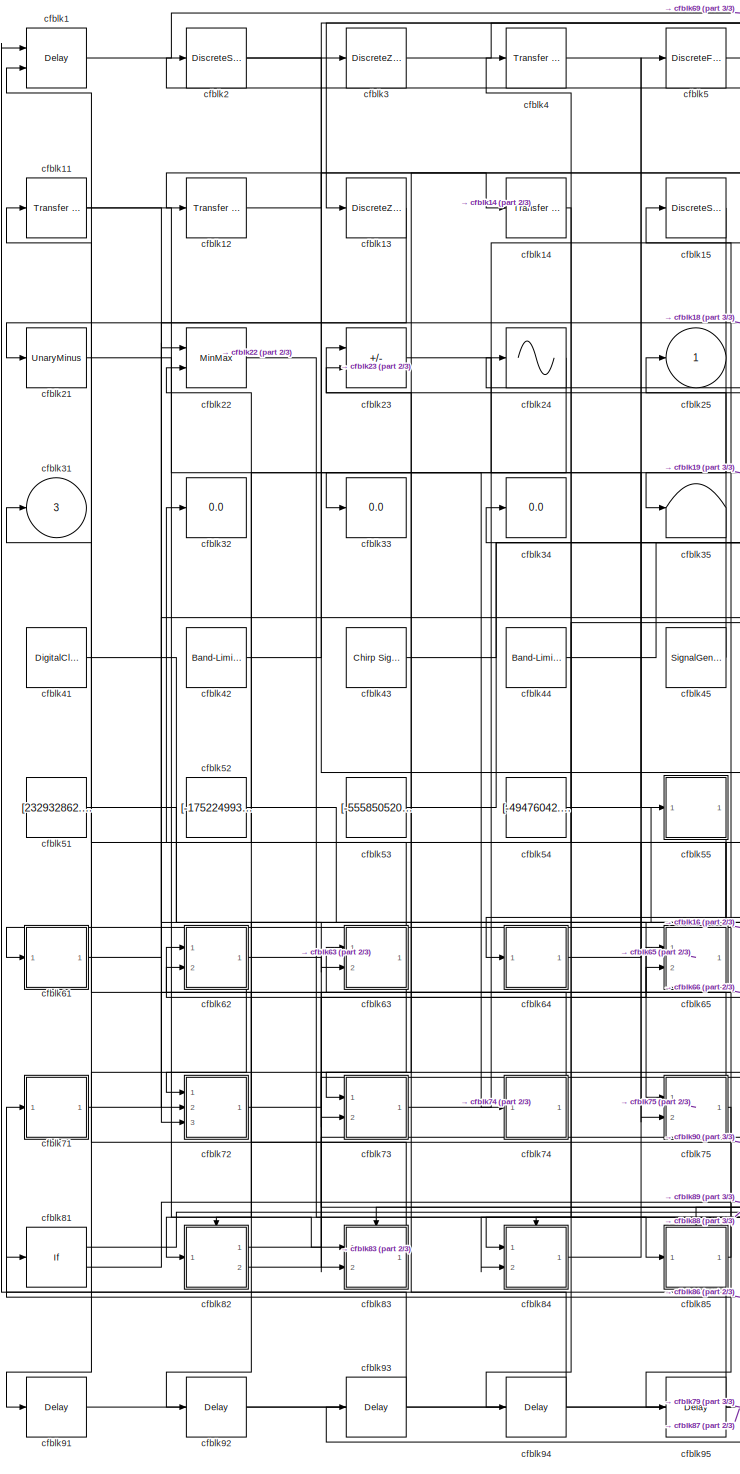
[diagram: root canvas - part 1/3, left side, full height]
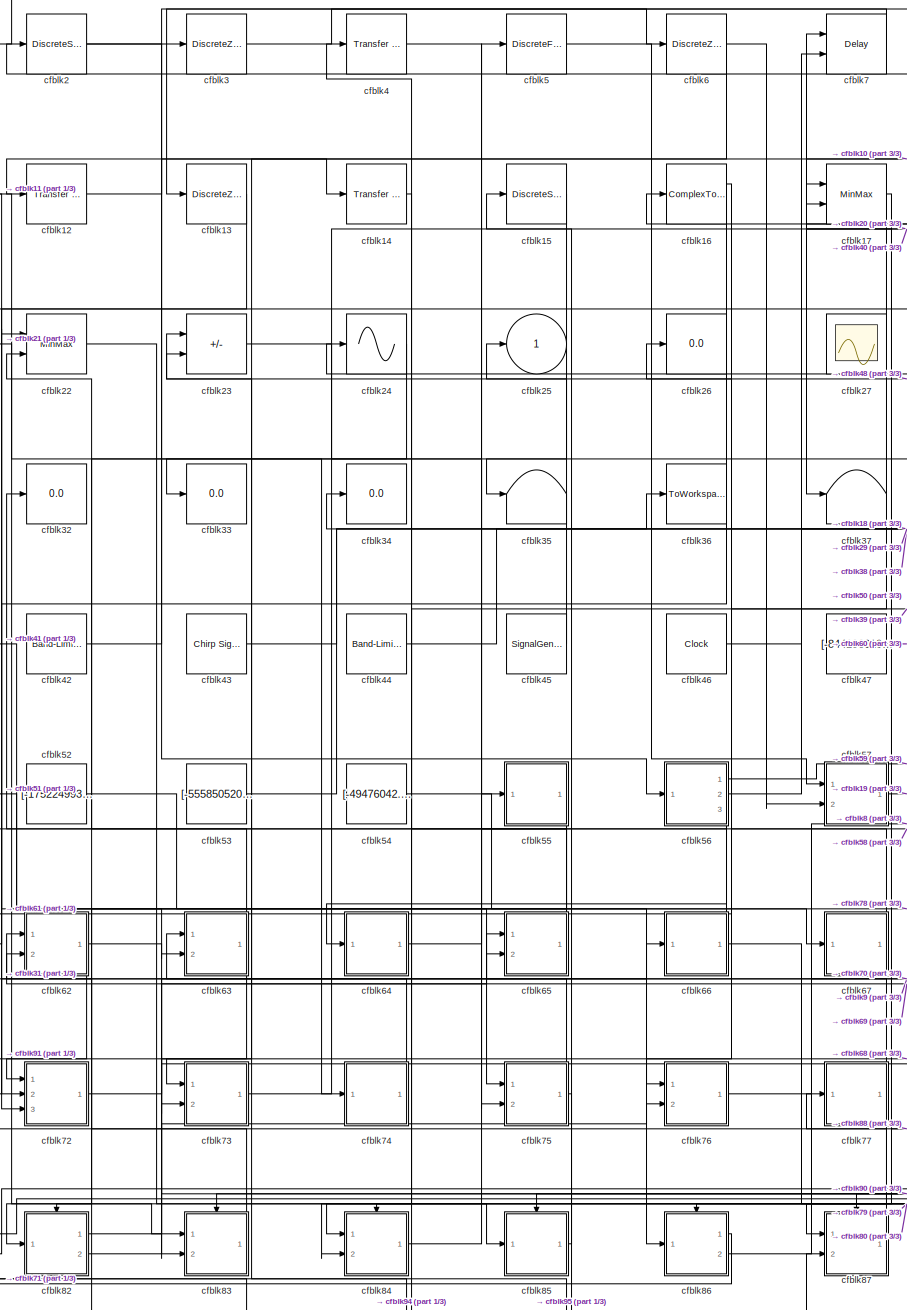
[diagram: root canvas - part 2/3, center side, full height]
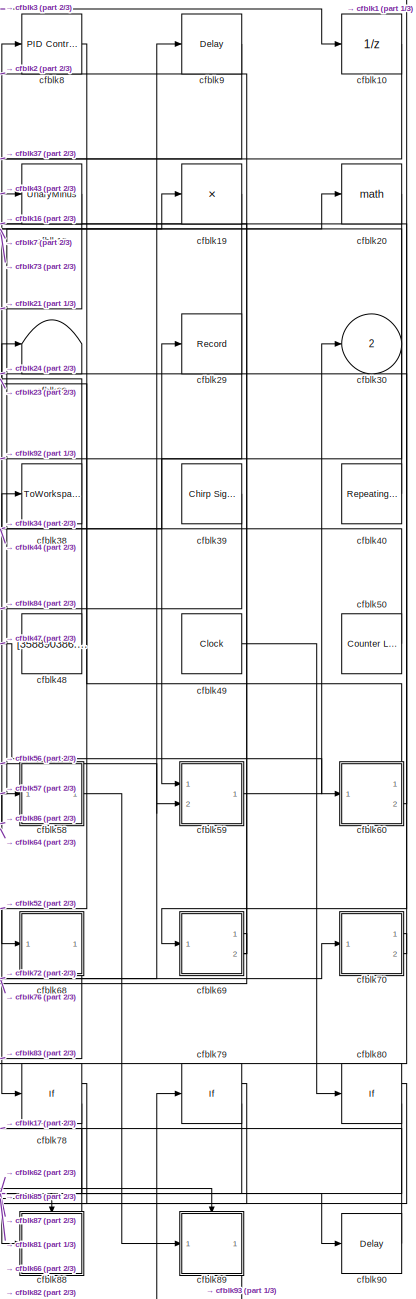
[diagram: root canvas - part 3/3, right side, full height]
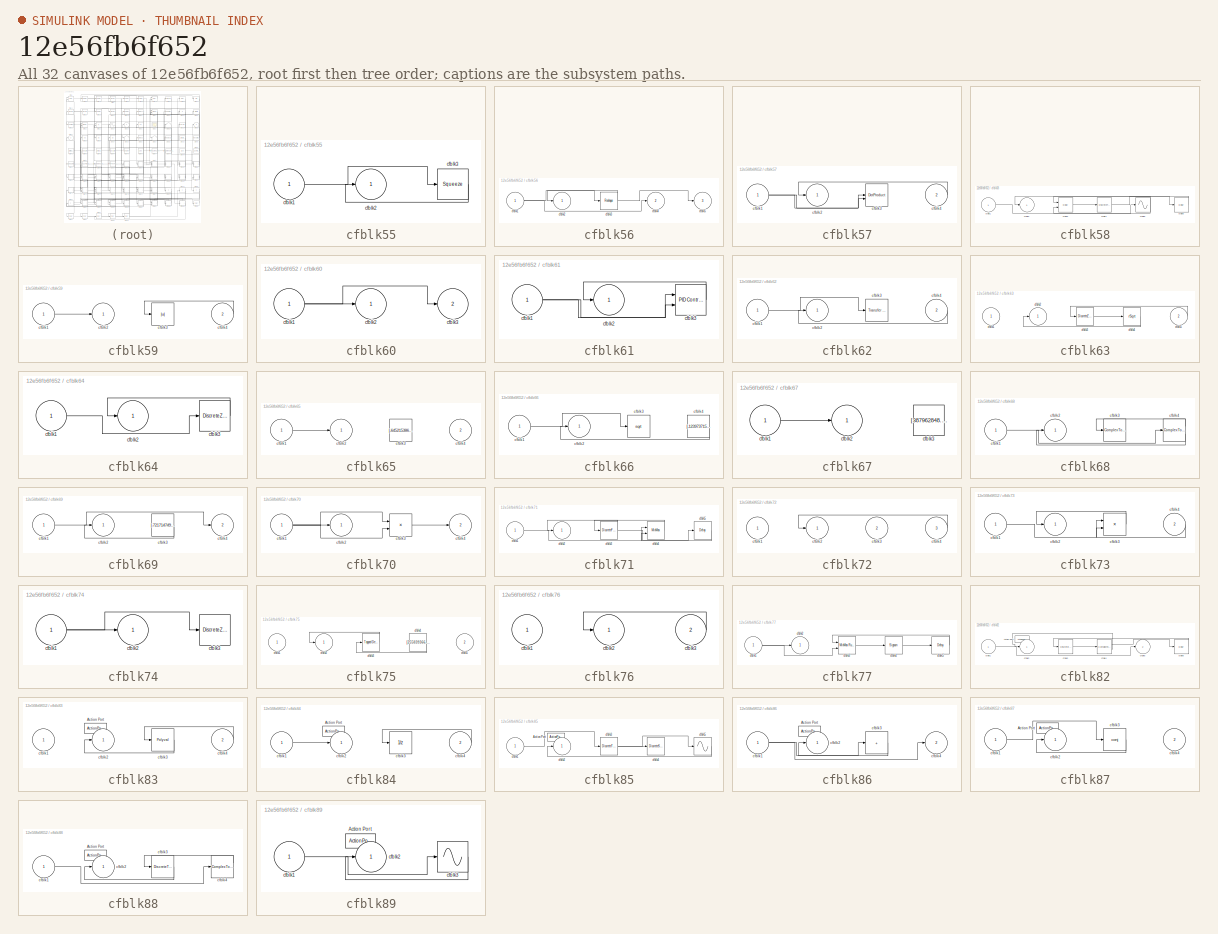
[diagram: thumbnail index - all 32 canvases of the model, root first then tree order]
MODEL slx_12e56fb6f652
KIND model
CONFIG AbsTol = auto
CONFIG EnableMultiTasking = off
CONFIG FixedStep = auto
CONFIG MaxStep = auto
CONFIG MinStep = auto
CONFIG RelTol = 1e-3
CONFIG SampleTimeConstraint = Unconstrained
CONFIG SolverName = VariableStepAuto
CONFIG StartTime = 0.0
CONFIG StopTime = 10.0
BLOCK [Delay] cfblk1
  DelayLengthSource = Input port
  InputPortMap = u0,p1
  Ports = [2, 1]
  SampleTime = 1
BLOCK [UnitDelay] cfblk10
  HasFrameUpgradeWarning = on
BLOCK [Reference] cfblk11  REF=simulink/Discrete/Transfer Fcn
Lead or Lag
  Ports = [1, 1]
  SourceBlock = simulink/Discrete/Transfer Fcn\nLead or Lag
  SourceProductBaseCode = SL
  SourceType = Lead or Lag Compensator
BLOCK [Reference] cfblk12  REF=simulink/Discrete/Transfer Fcn
Lead or Lag
  Ports = [1, 1]
  SourceBlock = simulink/Discrete/Transfer Fcn\nLead or Lag
  SourceProductBaseCode = SL
  SourceType = Lead or Lag Compensator
BLOCK [DiscreteZeroPole] cfblk13
  Gain = 1
  Poles = [0 0.5]
BLOCK [Reference] cfblk14  REF=simulink/Discrete/Transfer Fcn
Real Zero
  Ports = [1, 1]
  SourceBlock = simulink/Discrete/Transfer Fcn\nReal Zero
  SourceProductBaseCode = SL
  SourceType = Transfer Fcn Real Zero
BLOCK [DiscreteStateSpace] cfblk15
BLOCK [ComplexToRealImag] cfblk16
  Ports = [1, 2]
BLOCK [MinMax] cfblk17
  Inputs = 2
  Ports = [2, 1]
BLOCK [UnaryMinus] cfblk18
BLOCK [Product] cfblk19
  Inputs = *
  Ports = [1, 1]
BLOCK [DiscreteStateSpace] cfblk2
BLOCK [Math] cfblk20
  Ports = [1, 1]
BLOCK [UnaryMinus] cfblk21
BLOCK [MinMax] cfblk22
  Inputs = 2
  Ports = [2, 1]
BLOCK [Sum] cfblk23
  IconShape = rectangular
  Inputs = +-
  Ports = [2, 1]
BLOCK [Sin] cfblk24
  Ports = [1, 1]
  SampleTime = 0
  TimeSource = Use external signal
BLOCK [Outport] cfblk25
BLOCK [Display] cfblk26
  Decimation = 1
  Ports = [1]
BLOCK [Scope] cfblk27
  Floating = on
  NumInputPorts = 1
  Ports = []
BLOCK [Terminator] cfblk28
BLOCK [Record] cfblk29
  FileSettingsInternal = {"entries":[{"content":{"excelSettings":{"content":{},"type":"Streamout.ExcelSettings"}},"type":"Streamout.FileSettingStorage","uuid":"7d52aaf1-a181-40a9-9f35-a4ee466a9437"}],"packageUris":["http://schema.mathworks.com/mf0/streamout_blocks/R2020a"],"version":"1.0"}
  Ports = [1]
  SignalsInternal = {"entries":[{"content":{"signals":[{"content":{"blockPath":["sampleModel282/cfblk29"],"channel":[],"dimensions":[1],"domain":"sampleModel282/cfblk29","lineColor":"#fe330a","plots":[1],"port":1,"sid":[""],"signalID":12055,"signalName":"cfblk44"},"type":"RecordBlkView.Signal","uuid":"b13949a6-b872-4204-8168-bd2ff3b91c96"}]},"type":"RecordBlkView.InputSignals","uuid":"624ad5e0-89e9-4b40-8b6d-38fdad05...<+98ch>
  VisualizationBindings = {"sparklinesplugin":{"info":[{"bindingParametersList":[],"subplotID":1}]}}
BLOCK [DiscreteZeroPole] cfblk3
  Gain = 1
  Poles = [0 0.5]
BLOCK [Outport] cfblk30
  Port = 2
BLOCK [Outport] cfblk31
  Port = 3
BLOCK [Display] cfblk32
  Decimation = 1
  Ports = [1]
BLOCK [Display] cfblk33
  Decimation = 1
  Ports = [1]
BLOCK [Display] cfblk34
  Decimation = 1
  Ports = [1]
BLOCK [Terminator] cfblk35
BLOCK [ToWorkspace] cfblk36
  FixptAsFi = on
  MaxDataPoints = inf
  Ports = [1]
  SampleTime = -1
  SaveFormat = Timeseries
  VariableName = diraaae
BLOCK [Terminator] cfblk37
BLOCK [ToWorkspace] cfblk38
  FixptAsFi = on
  MaxDataPoints = inf
  Ports = [1]
  SampleTime = -1
  SaveFormat = Timeseries
  VariableName = cfcnxit
BLOCK [Reference] cfblk39  REF=simulink/Sources/Chirp Signal
  Ports = [0, 1]
  SourceBlock = simulink/Sources/Chirp Signal
  SourceProductBaseCode = SL
  SourceType = chirp
BLOCK [Reference] cfblk4  REF=simulink/Discrete/Transfer Fcn
Real Zero
  Ports = [1, 1]
  SourceBlock = simulink/Discrete/Transfer Fcn\nReal Zero
  SourceProductBaseCode = SL
  SourceType = Transfer Fcn Real Zero
BLOCK [Reference] cfblk40  REF=simulink/Sources/Repeating
Sequence
  Ports = [0, 1]
  SourceBlock = simulink/Sources/Repeating\nSequence
  SourceProductBaseCode = SL
  SourceType = Repeating table
BLOCK [DigitalClock] cfblk41
BLOCK [Reference] cfblk42  REF=simulink/Sources/Band-Limited
White Noise
  Ports = [0, 1]
  SourceBlock = simulink/Sources/Band-Limited\nWhite Noise
  SourceProductBaseCode = SL
  SourceType = Band-Limited White Noise.
BLOCK [Reference] cfblk43  REF=simulink/Sources/Chirp Signal
  Ports = [0, 1]
  SourceBlock = simulink/Sources/Chirp Signal
  SourceProductBaseCode = SL
  SourceType = chirp
BLOCK [Reference] cfblk44  REF=simulink/Sources/Band-Limited
White Noise
  Ports = [0, 1]
  SourceBlock = simulink/Sources/Band-Limited\nWhite Noise
  SourceProductBaseCode = SL
  SourceType = Band-Limited White Noise.
BLOCK [SignalGenerator] cfblk45
  Amplitude = [-24924778.301596]
  Ports = [0, 1]
  Units = rad/sec
BLOCK [Clock] cfblk46
BLOCK [Constant] cfblk47
  SampleTime = 1
  Value = [-844196610.419380]
BLOCK [Constant] cfblk48
  SampleTime = 1
  Value = [358890386.516491]
BLOCK [Clock] cfblk49
BLOCK [DiscreteFir] cfblk5
  InputPortMap = u0
  OutputPortMap = o0
  Ports = [1, 1]
  SampleTime = 1
BLOCK [Reference] cfblk50  REF=simulink/Sources/Counter
Limited
  Ports = [0, 1]
  SourceBlock = simulink/Sources/Counter\nLimited
  SourceProductBaseCode = SL
  SourceType = Counter Limited
BLOCK [Constant] cfblk51
  SampleTime = 1
  Value = [232932862.634737]
BLOCK [Constant] cfblk52
  SampleTime = 1
  Value = [-175224993.894887]
BLOCK [Constant] cfblk53
  SampleTime = 1
  Value = [-555850520.381297]
BLOCK [Constant] cfblk54
  SampleTime = 1
  Value = [-49476042.458732]
BLOCK [SubSystem] cfblk55
  Ports = [1, 1]
  RequestExecContextInheritance = off
BLOCK [Inport] cfblk55/cfblk1
BLOCK [Outport] cfblk55/cfblk2
BLOCK [Squeeze] cfblk55/cfblk3
BLOCK [SubSystem] cfblk56
  Ports = [1, 3]
  RequestExecContextInheritance = off
BLOCK [Inport] cfblk56/cfblk1
BLOCK [Outport] cfblk56/cfblk2
BLOCK [Reshape] cfblk56/cfblk3
  Ports = [1, 1]
BLOCK [Outport] cfblk56/cfblk4
  Port = 2
BLOCK [Outport] cfblk56/cfblk5
  Port = 3
BLOCK [SubSystem] cfblk57
  Ports = [2, 1]
  RequestExecContextInheritance = off
BLOCK [Inport] cfblk57/cfblk1
BLOCK [Outport] cfblk57/cfblk2
BLOCK [DotProduct] cfblk57/cfblk3
  OutDataTypeStr = Inherit: Inherit via internal rule
BLOCK [Inport] cfblk57/cfblk4
  Port = 2
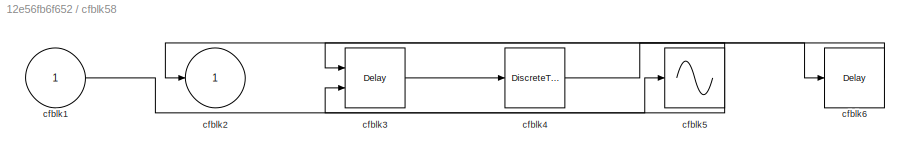
BLOCK [SubSystem] cfblk58
  Ports = [1, 1]
  RequestExecContextInheritance = off
BLOCK [Inport] cfblk58/cfblk1
BLOCK [Outport] cfblk58/cfblk2
BLOCK [Delay] cfblk58/cfblk3
  InputPortMap = u0,e6
  Ports = [2, 1]
  SampleTime = 1
  ShowEnablePort = on
BLOCK [DiscreteTransferFcn] cfblk58/cfblk4
  InputPortMap = u0
  Ports = [1, 1]
  SampleTime = 1
BLOCK [Sin] cfblk58/cfblk5
  Ports = [1, 1]
  SampleTime = 0
  TimeSource = Use external signal
BLOCK [Delay] cfblk58/cfblk6
  InputPortMap = u0
  Ports = [1, 1]
  SampleTime = 1
BLOCK [SubSystem] cfblk59
  Ports = [2, 1]
  RequestExecContextInheritance = off
BLOCK [Inport] cfblk59/cfblk1
BLOCK [Outport] cfblk59/cfblk2
BLOCK [Abs] cfblk59/cfblk3
  SaturateOnIntegerOverflow = off
BLOCK [Inport] cfblk59/cfblk4
  Port = 2
BLOCK [DiscreteZeroPole] cfblk6
  Gain = 1
  Poles = [0 0.5]
BLOCK [SubSystem] cfblk60
  Ports = [1, 2]
  RequestExecContextInheritance = off
BLOCK [Inport] cfblk60/cfblk1
BLOCK [Outport] cfblk60/cfblk2
BLOCK [Outport] cfblk60/cfblk3
  Port = 2
BLOCK [SubSystem] cfblk61
  Ports = [1, 1]
  RequestExecContextInheritance = off
BLOCK [Inport] cfblk61/cfblk1
BLOCK [Outport] cfblk61/cfblk2
BLOCK [Reference] cfblk61/cfblk3  REF=slpidlib/PID Controller (2DOF)
  Ports = [2, 1]
  SourceBlock = slpidlib/PID Controller (2DOF)
  SourceProductBaseCode = SL
  SourceType = PID 2dof
BLOCK [SubSystem] cfblk62
  Ports = [2, 1]
  RequestExecContextInheritance = off
BLOCK [Inport] cfblk62/cfblk1
BLOCK [Outport] cfblk62/cfblk2
BLOCK [Reference] cfblk62/cfblk3  REF=simulink/Discrete/Transfer Fcn
Lead or Lag
  Ports = [1, 1]
  SourceBlock = simulink/Discrete/Transfer Fcn\nLead or Lag
  SourceProductBaseCode = SL
  SourceType = Lead or Lag Compensator
BLOCK [Inport] cfblk62/cfblk4
  Port = 2
BLOCK [SubSystem] cfblk63
  Ports = [2, 1]
  RequestExecContextInheritance = off
BLOCK [Inport] cfblk63/cfblk1
BLOCK [Outport] cfblk63/cfblk2
BLOCK [DiscreteZeroPole] cfblk63/cfblk3
  Gain = 1
  Poles = [0 0.5]
BLOCK [Sqrt] cfblk63/cfblk4
  AlgorithmType = Newton-Raphson
  Operator = rSqrt
BLOCK [Inport] cfblk63/cfblk5
  Port = 2
BLOCK [SubSystem] cfblk64
  Ports = [1, 1]
  RequestExecContextInheritance = off
BLOCK [Inport] cfblk64/cfblk1
BLOCK [Outport] cfblk64/cfblk2
BLOCK [DiscreteZeroPole] cfblk64/cfblk3
  Gain = 1
  Poles = [0 0.5]
BLOCK [SubSystem] cfblk65
  Ports = [2, 1]
  RequestExecContextInheritance = off
BLOCK [Inport] cfblk65/cfblk1
BLOCK [Outport] cfblk65/cfblk2
BLOCK [Constant] cfblk65/cfblk3
  SampleTime = 1
  Value = [-645215386.097908]
BLOCK [Inport] cfblk65/cfblk4
  Port = 2
BLOCK [SubSystem] cfblk66
  Ports = [1, 1]
  RequestExecContextInheritance = off
BLOCK [Inport] cfblk66/cfblk1
BLOCK [Outport] cfblk66/cfblk2
BLOCK [Sqrt] cfblk66/cfblk3
BLOCK [Constant] cfblk66/cfblk4
  SampleTime = 1
  Value = [-123973715.494942]
BLOCK [SubSystem] cfblk67
  Ports = [1, 1]
  RequestExecContextInheritance = off
BLOCK [Inport] cfblk67/cfblk1
BLOCK [Outport] cfblk67/cfblk2
BLOCK [Constant] cfblk67/cfblk3
  SampleTime = 1
  Value = [387962848.922604]
BLOCK [SubSystem] cfblk68
  Ports = [1, 1]
  RequestExecContextInheritance = off
BLOCK [Inport] cfblk68/cfblk1
BLOCK [Outport] cfblk68/cfblk2
BLOCK [ComplexToRealImag] cfblk68/cfblk3
  Ports = [1, 2]
BLOCK [ComplexToRealImag] cfblk68/cfblk4
  Ports = [1, 2]
BLOCK [SubSystem] cfblk69
  Ports = [1, 2]
  RequestExecContextInheritance = off
BLOCK [Inport] cfblk69/cfblk1
BLOCK [Outport] cfblk69/cfblk2
BLOCK [Constant] cfblk69/cfblk3
  SampleTime = 1
  Value = [-721714749.649663]
BLOCK [Outport] cfblk69/cfblk4
  Port = 2
BLOCK [Delay] cfblk7
  InputPortMap = u0,e6
  Ports = [2, 1]
  SampleTime = 1
  ShowEnablePort = on
BLOCK [SubSystem] cfblk70
  Ports = [1, 2]
  RequestExecContextInheritance = off
BLOCK [Inport] cfblk70/cfblk1
BLOCK [Outport] cfblk70/cfblk2
BLOCK [Product] cfblk70/cfblk3
  Ports = [2, 1]
BLOCK [Outport] cfblk70/cfblk4
  Port = 2
BLOCK [SubSystem] cfblk71
  Ports = [1, 1]
  RequestExecContextInheritance = off
BLOCK [Inport] cfblk71/cfblk1
BLOCK [Outport] cfblk71/cfblk2
BLOCK [DiscreteFilter] cfblk71/cfblk3
  InputPortMap = u0
  Ports = [1, 1]
  SampleTime = 1
BLOCK [MinMax] cfblk71/cfblk4
  Function = max
  Inputs = 2
  Ports = [2, 1]
BLOCK [Delay] cfblk71/cfblk5
  InputPortMap = u0
  Ports = [1, 1]
  SampleTime = 1
BLOCK [SubSystem] cfblk72
  Ports = [3, 1]
  RequestExecContextInheritance = off
BLOCK [Inport] cfblk72/cfblk1
BLOCK [Outport] cfblk72/cfblk2
BLOCK [Inport] cfblk72/cfblk3
  Port = 2
BLOCK [Inport] cfblk72/cfblk4
  Port = 3
BLOCK [SubSystem] cfblk73
  Ports = [2, 1]
  RequestExecContextInheritance = off
BLOCK [Inport] cfblk73/cfblk1
BLOCK [Outport] cfblk73/cfblk2
BLOCK [Product] cfblk73/cfblk3
  Ports = [2, 1]
BLOCK [Inport] cfblk73/cfblk4
  Port = 2
BLOCK [SubSystem] cfblk74
  Ports = [1, 1]
  RequestExecContextInheritance = off
BLOCK [Inport] cfblk74/cfblk1
BLOCK [Outport] cfblk74/cfblk2
BLOCK [DiscreteZeroPole] cfblk74/cfblk3
  Gain = 1
  Poles = [0 0.5]
BLOCK [SubSystem] cfblk75
  Ports = [2, 1]
  RequestExecContextInheritance = off
BLOCK [Inport] cfblk75/cfblk1
BLOCK [Outport] cfblk75/cfblk2
BLOCK [Reference] cfblk75/cfblk3  REF=simulink/Discrete/Tapped Delay
  Ports = [1, 1]
  SourceBlock = simulink/Discrete/Tapped Delay
  SourceProductBaseCode = SL
  SourceType = Tapped Delay Line
BLOCK [Constant] cfblk75/cfblk4
  SampleTime = 1
  Value = [255839366.779159]
BLOCK [Inport] cfblk75/cfblk5
  Port = 2
BLOCK [SubSystem] cfblk76
  Ports = [2, 1]
  RequestExecContextInheritance = off
BLOCK [Inport] cfblk76/cfblk1
BLOCK [Outport] cfblk76/cfblk2
BLOCK [Inport] cfblk76/cfblk3
  Port = 2
BLOCK [SubSystem] cfblk77
  Ports = [1, 1]
  RequestExecContextInheritance = off
BLOCK [Inport] cfblk77/cfblk1
BLOCK [Outport] cfblk77/cfblk2
BLOCK [Reference] cfblk77/cfblk3  REF=simulink/Math
Operations/MinMax
Running
Resettable
  Ports = [2, 1]
  SourceBlock = simulink/Math\nOperations/MinMax\nRunning\nResettable
  SourceProductBaseCode = SL
  SourceType = MinMax Running Resettable
BLOCK [Signum] cfblk77/cfblk4
BLOCK [Delay] cfblk77/cfblk5
  InputPortMap = u0
  Ports = [1, 1]
  SampleTime = 1
BLOCK [If] cfblk78
  IfExpression = u1 >= 0
  Ports = [1, 2]
  SampleTime = 1
BLOCK [If] cfblk79
  IfExpression = u1 >= 0
  Ports = [1, 2]
  SampleTime = 1
BLOCK [Reference] cfblk8  REF=slpidlib/PID Controller
  Ports = [1, 1]
  SourceBlock = slpidlib/PID Controller
  SourceProductBaseCode = SL
  SourceType = PID 1dof
BLOCK [If] cfblk80
  IfExpression = u1 >= 0
  Ports = [1, 2]
  SampleTime = 1
BLOCK [If] cfblk81
  IfExpression = u1 >= 0
  Ports = [1, 2]
  SampleTime = 1
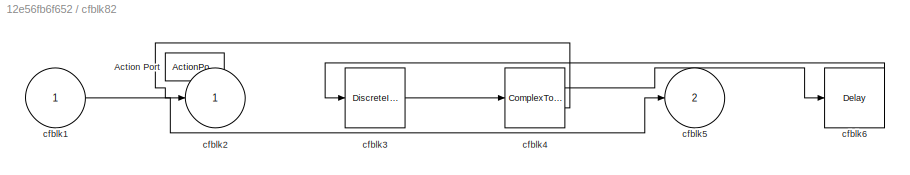
BLOCK [SubSystem] cfblk82
  Ports = [1, 2, 0, 0, 0, 0, 0, 1]
  RequestExecContextInheritance = off
  TreatAsAtomicUnit = on
BLOCK [ActionPort] cfblk82/Action Port
  ActionPortLabel = if(u1 >= 0)
BLOCK [Inport] cfblk82/cfblk1
BLOCK [Outport] cfblk82/cfblk2
BLOCK [DiscreteIntegrator] cfblk82/cfblk3
  ICPrevOutput = DiscIntNeverNeededParam
  ICPrevScaledInput = DiscIntNeverNeededParam
  InitialConditionSetting = Auto
  Ports = [1, 1]
  SampleTime = -1
BLOCK [ComplexToMagnitudeAngle] cfblk82/cfblk4
  Ports = [1, 2]
BLOCK [Outport] cfblk82/cfblk5
  Port = 2
BLOCK [Delay] cfblk82/cfblk6
  InputPortMap = u0
  Ports = [1, 1]
BLOCK [SubSystem] cfblk83
  Ports = [2, 1, 0, 0, 0, 0, 0, 1]
  RequestExecContextInheritance = off
  TreatAsAtomicUnit = on
BLOCK [ActionPort] cfblk83/Action Port
  ActionPortLabel = else
BLOCK [Inport] cfblk83/cfblk1
BLOCK [Outport] cfblk83/cfblk2
BLOCK [Polyval] cfblk83/cfblk3
  Coefs = [ +2.081618890e-019, -1.441693666e-014, +4.719686976e-010, -8.536869453e-006, +1.621573104e-001, -8.087801117e+001 ]
BLOCK [Inport] cfblk83/cfblk4
  Port = 2
BLOCK [SubSystem] cfblk84
  Ports = [2, 1, 0, 0, 0, 0, 0, 1]
  RequestExecContextInheritance = off
  TreatAsAtomicUnit = on
BLOCK [ActionPort] cfblk84/Action Port
  ActionPortLabel = if(u1 >= 0)
BLOCK [Inport] cfblk84/cfblk1
BLOCK [Outport] cfblk84/cfblk2
BLOCK [UnitDelay] cfblk84/cfblk3
  HasFrameUpgradeWarning = on
  SampleTime = -1
BLOCK [Inport] cfblk84/cfblk4
  Port = 2
BLOCK [SubSystem] cfblk85
  Ports = [1, 1, 0, 0, 0, 0, 0, 1]
  RequestExecContextInheritance = off
  TreatAsAtomicUnit = on
BLOCK [ActionPort] cfblk85/Action Port
  ActionPortLabel = else
BLOCK [Inport] cfblk85/cfblk1
BLOCK [Outport] cfblk85/cfblk2
BLOCK [DiscreteTransferFcn] cfblk85/cfblk3
  InputPortMap = u0
  Ports = [1, 1]
BLOCK [DiscreteStateSpace] cfblk85/cfblk4
  SampleTime = -1
BLOCK [Sin] cfblk85/cfblk5
  Ports = [1, 1]
  SampleTime = 0
  TimeSource = Use external signal
BLOCK [SubSystem] cfblk86
  Ports = [1, 2, 0, 0, 0, 0, 0, 1]
  RequestExecContextInheritance = off
  TreatAsAtomicUnit = on
BLOCK [ActionPort] cfblk86/Action Port
  ActionPortLabel = if(u1 >= 0)
BLOCK [Inport] cfblk86/cfblk1
BLOCK [Outport] cfblk86/cfblk2
BLOCK [Sum] cfblk86/cfblk3
  IconShape = rectangular
  Inputs = +
  Ports = [1, 1]
BLOCK [Outport] cfblk86/cfblk4
  Port = 2
BLOCK [SubSystem] cfblk87
  Ports = [2, 1, 0, 0, 0, 0, 0, 1]
  RequestExecContextInheritance = off
  TreatAsAtomicUnit = on
BLOCK [ActionPort] cfblk87/Action Port
  ActionPortLabel = else
BLOCK [Inport] cfblk87/cfblk1
BLOCK [Outport] cfblk87/cfblk2
BLOCK [Math] cfblk87/cfblk3
  Operator = conj
  Ports = [1, 1]
BLOCK [Inport] cfblk87/cfblk4
  Port = 2
BLOCK [SubSystem] cfblk88
  Ports = [1, 1, 0, 0, 0, 0, 0, 1]
  RequestExecContextInheritance = off
  TreatAsAtomicUnit = on
BLOCK [ActionPort] cfblk88/Action Port
  ActionPortLabel = if(u1 >= 0)
BLOCK [Inport] cfblk88/cfblk1
BLOCK [Outport] cfblk88/cfblk2
BLOCK [DiscreteTransferFcn] cfblk88/cfblk3
  InputPortMap = u0
  Ports = [1, 1]
BLOCK [ComplexToRealImag] cfblk88/cfblk4
  Ports = [1, 2]
BLOCK [SubSystem] cfblk89
  Ports = [1, 1, 0, 0, 0, 0, 0, 1]
  RequestExecContextInheritance = off
  TreatAsAtomicUnit = on
BLOCK [ActionPort] cfblk89/Action Port
  ActionPortLabel = else
BLOCK [Inport] cfblk89/cfblk1
BLOCK [Outport] cfblk89/cfblk2
BLOCK [Sin] cfblk89/cfblk3
  Ports = [1, 1]
  SampleTime = 0
  TimeSource = Use external signal
BLOCK [Delay] cfblk9
  InputPortMap = u0
  Ports = [1, 1]
  SampleTime = 1
BLOCK [Delay] cfblk90
  InputPortMap = u0
  Ports = [1, 1]
  SampleTime = 1
BLOCK [Delay] cfblk91
  InputPortMap = u0
  Ports = [1, 1]
  SampleTime = 1
BLOCK [Delay] cfblk92
  InputPortMap = u0
  Ports = [1, 1]
  SampleTime = 1
BLOCK [Delay] cfblk93
  InputPortMap = u0
  Ports = [1, 1]
  SampleTime = 1
BLOCK [Delay] cfblk94
  InputPortMap = u0
  Ports = [1, 1]
  SampleTime = 1
BLOCK [Delay] cfblk95
  InputPortMap = u0
  Ports = [1, 1]
  SampleTime = 1
LINE cfblk10:1 -> cfblk37:1
NET cfblk11:1 -> cfblk63:2, cfblk83:1
LINE cfblk12:1 -> cfblk14:1
LINE cfblk13:1 -> cfblk72:2
LINE cfblk14:1 -> cfblk94:1
LINE cfblk15:1 -> cfblk35:1
LINE cfblk16:1 -> cfblk61:1
LINE cfblk16:2 -> cfblk72:3
NET cfblk17:1 -> cfblk76:1, cfblk87:1
LINE cfblk18:1 -> cfblk21:1
LINE cfblk19:1 -> cfblk92:1
LINE cfblk1:1 -> cfblk69:1
LINE cfblk20:1 -> cfblk59:1
LINE cfblk21:1 -> cfblk74:1
LINE cfblk22:1 -> cfblk85:1
LINE cfblk23:1 -> cfblk75:2
LINE cfblk24:1 -> cfblk33:1
NET cfblk2:1 -> cfblk56:1, cfblk6:1
LINE cfblk39:1 -> cfblk84:1
LINE cfblk3:1 -> cfblk10:1
LINE cfblk40:1 -> cfblk7:1
LINE cfblk41:1 -> cfblk75:1
LINE cfblk42:1 -> cfblk3:1
LINE cfblk43:1 -> cfblk18:1
LINE cfblk44:1 -> cfblk29:1
LINE cfblk45:1 -> cfblk25:1
LINE cfblk46:1 -> cfblk7:2
LINE cfblk47:1 -> cfblk60:1
LINE cfblk48:1 -> cfblk23:1
LINE cfblk49:1 -> cfblk80:1
LINE cfblk4:1 -> cfblk55:1
LINE cfblk50:1 -> cfblk34:1
LINE cfblk51:1 -> cfblk86:1
LINE cfblk52:1 -> cfblk78:1
LINE cfblk53:1 -> cfblk36:1
LINE cfblk54:1 -> cfblk67:1
LINE cfblk55/cfblk1:1 -> cfblk55/cfblk3:1
LINE cfblk55/cfblk3:1 -> cfblk55/cfblk2:1
LINE cfblk55:1 -> cfblk82:1
NET cfblk56/cfblk1:1 -> cfblk56/cfblk3:1, cfblk56/cfblk4:1
NET cfblk56/cfblk3:1 -> cfblk56/cfblk2:1, cfblk56/cfblk5:1
LINE cfblk56:1 -> cfblk59:2
LINE cfblk56:2 -> cfblk38:1
LINE cfblk56:3 -> cfblk64:1
NET cfblk57/cfblk1:1 -> cfblk57/cfblk3:1, cfblk57/cfblk3:2
LINE cfblk57/cfblk4:1 -> cfblk57/cfblk2:1
LINE cfblk57:1 -> cfblk19:1
LINE cfblk58/cfblk1:1 -> cfblk58/cfblk5:1
LINE cfblk58/cfblk3:1 -> cfblk58/cfblk4:1
LINE cfblk58/cfblk4:1 -> cfblk58/cfblk6:1
NET cfblk58/cfblk5:1 -> cfblk58/cfblk2:1, cfblk58/cfblk3:2
LINE cfblk58/cfblk6:1 -> cfblk58/cfblk3:1
LINE cfblk58:1 -> cfblk89:1
LINE cfblk59/cfblk1:1 -> cfblk59/cfblk2:1
LINE cfblk59/cfblk4:1 -> cfblk59/cfblk3:1
LINE cfblk59:1 -> cfblk30:1
LINE cfblk5:1 -> cfblk57:1
NET cfblk60/cfblk1:1 -> cfblk60/cfblk2:1, cfblk60/cfblk3:1
LINE cfblk60:1 -> cfblk28:1
LINE cfblk60:2 -> cfblk16:1
NET cfblk61/cfblk1:1 -> cfblk61/cfblk3:1, cfblk61/cfblk3:2
LINE cfblk61/cfblk3:1 -> cfblk61/cfblk2:1
LINE cfblk61:1 -> cfblk22:1
LINE cfblk62/cfblk1:1 -> cfblk62/cfblk3:1
LINE cfblk62/cfblk4:1 -> cfblk62/cfblk2:1
NET cfblk62:1 -> cfblk72:1, cfblk90:1
LINE cfblk63/cfblk3:1 -> cfblk63/cfblk4:1
LINE cfblk63/cfblk4:1 -> cfblk63/cfblk2:1
LINE cfblk63/cfblk5:1 -> cfblk63/cfblk3:1
NET cfblk63:1 -> cfblk32:1, cfblk91:1
LINE cfblk64/cfblk1:1 -> cfblk64/cfblk3:1
LINE cfblk64/cfblk3:1 -> cfblk64/cfblk2:1
LINE cfblk64:1 -> cfblk58:1
LINE cfblk65/cfblk1:1 -> cfblk65/cfblk2:1
NET cfblk65:1 -> cfblk11:1, cfblk22:2
LINE cfblk66/cfblk1:1 -> cfblk66/cfblk3:1
LINE cfblk66/cfblk4:1 -> cfblk66/cfblk2:1
NET cfblk66:1 -> cfblk4:1, cfblk88:1
LINE cfblk67/cfblk1:1 -> cfblk67/cfblk2:1
LINE cfblk67:1 -> cfblk26:1
LINE cfblk68/cfblk1:1 -> cfblk68/cfblk4:1
LINE cfblk68/cfblk4:1 -> cfblk68/cfblk3:1
LINE cfblk68/cfblk4:2 -> cfblk68/cfblk2:1
LINE cfblk68:1 -> cfblk83:2
LINE cfblk69/cfblk1:1 -> cfblk69/cfblk4:1
LINE cfblk69/cfblk3:1 -> cfblk69/cfblk2:1
LINE cfblk69:1 -> cfblk62:2
NET cfblk69:2 -> cfblk17:2, cfblk2:1
NET cfblk6:1 -> cfblk12:1, cfblk57:2
NET cfblk70/cfblk1:1 -> cfblk70/cfblk2:1, cfblk70/cfblk3:1, cfblk70/cfblk3:2
LINE cfblk70/cfblk3:1 -> cfblk70/cfblk4:1
LINE cfblk70:1 -> cfblk73:2
LINE cfblk70:2 -> cfblk24:1
LINE cfblk71/cfblk1:1 -> cfblk71/cfblk4:1
NET cfblk71/cfblk3:1 -> cfblk71/cfblk2:1, cfblk71/cfblk5:1
LINE cfblk71/cfblk4:1 -> cfblk71/cfblk3:1
LINE cfblk71/cfblk5:1 -> cfblk71/cfblk4:2
LINE cfblk71:1 -> cfblk66:1
LINE cfblk72/cfblk4:1 -> cfblk72/cfblk2:1
LINE cfblk72:1 -> cfblk70:1
LINE cfblk73/cfblk1:1 -> cfblk73/cfblk3:2
LINE cfblk73/cfblk3:1 -> cfblk73/cfblk2:1
LINE cfblk73/cfblk4:1 -> cfblk73/cfblk3:1
LINE cfblk73:1 -> cfblk20:1
NET cfblk74/cfblk1:1 -> cfblk74/cfblk2:1, cfblk74/cfblk3:1
LINE cfblk74:1 -> cfblk31:1
LINE cfblk75/cfblk3:1 -> cfblk75/cfblk2:1
LINE cfblk75/cfblk4:1 -> cfblk75/cfblk3:1
NET cfblk75:1 -> cfblk63:1, cfblk95:1
LINE cfblk76/cfblk3:1 -> cfblk76/cfblk2:1
LINE cfblk76:1 -> cfblk9:1
NET cfblk77/cfblk1:1 -> cfblk77/cfblk2:1, cfblk77/cfblk3:2
LINE cfblk77/cfblk3:1 -> cfblk77/cfblk4:1
LINE cfblk77/cfblk4:1 -> cfblk77/cfblk5:1
LINE cfblk77/cfblk5:1 -> cfblk77/cfblk3:1
NET cfblk77:1 -> cfblk65:1, cfblk84:2
LINE cfblk78:1 -> cfblk82:ifaction
LINE cfblk78:2 -> cfblk83:ifaction
LINE cfblk79:1 -> cfblk84:ifaction
LINE cfblk79:2 -> cfblk85:ifaction
LINE cfblk7:1 -> cfblk13:1
LINE cfblk80:1 -> cfblk86:ifaction
LINE cfblk80:2 -> cfblk87:ifaction
LINE cfblk81:1 -> cfblk88:ifaction
LINE cfblk81:2 -> cfblk89:ifaction
LINE cfblk82/cfblk1:1 -> cfblk82/cfblk5:1
LINE cfblk82/cfblk3:1 -> cfblk82/cfblk4:1
LINE cfblk82/cfblk4:1 -> cfblk82/cfblk6:1
LINE cfblk82/cfblk4:2 -> cfblk82/cfblk2:1
LINE cfblk82/cfblk6:1 -> cfblk82/cfblk3:1
LINE cfblk82:1 -> cfblk65:2
LINE cfblk82:2 -> cfblk76:2
LINE cfblk83/cfblk3:1 -> cfblk83/cfblk2:1
LINE cfblk83/cfblk4:1 -> cfblk83/cfblk3:1
LINE cfblk83:1 -> cfblk62:1
LINE cfblk84/cfblk1:1 -> cfblk84/cfblk2:1
LINE cfblk84/cfblk4:1 -> cfblk84/cfblk3:1
LINE cfblk84:1 -> cfblk5:1
LINE cfblk85/cfblk1:1 -> cfblk85/cfblk3:1
NET cfblk85/cfblk3:1 -> cfblk85/cfblk4:1, cfblk85/cfblk5:1
LINE cfblk85/cfblk5:1 -> cfblk85/cfblk2:1
LINE cfblk85:1 -> cfblk15:1
NET cfblk86/cfblk1:1 -> cfblk86/cfblk3:1, cfblk86/cfblk4:1
LINE cfblk86/cfblk3:1 -> cfblk86/cfblk2:1
LINE cfblk86:1 -> cfblk71:1
LINE cfblk86:2 -> cfblk8:1
LINE cfblk87/cfblk1:1 -> cfblk87/cfblk3:1
LINE cfblk87/cfblk3:1 -> cfblk87/cfblk2:1
LINE cfblk87:1 -> cfblk77:1
LINE cfblk88/cfblk1:1 -> cfblk88/cfblk4:1
LINE cfblk88/cfblk3:1 -> cfblk88/cfblk2:1
LINE cfblk88/cfblk4:1 -> cfblk88/cfblk3:1
LINE cfblk88:1 -> cfblk17:1
LINE cfblk89/cfblk1:1 -> cfblk89/cfblk3:1
LINE cfblk89/cfblk3:1 -> cfblk89/cfblk2:1
LINE cfblk89:1 -> cfblk93:1
LINE cfblk8:1 -> cfblk68:1
LINE cfblk90:1 -> cfblk1:2
LINE cfblk91:1 -> cfblk87:2
LINE cfblk92:1 -> cfblk79:1
LINE cfblk93:1 -> cfblk81:1
LINE cfblk94:1 -> cfblk1:1
LINE cfblk95:1 -> cfblk23:2
LINE cfblk9:1 -> cfblk73:1
note: NET lines group one-source signal fan-out (src -> all destinations, sorted); 1:1 wires keep LINE
